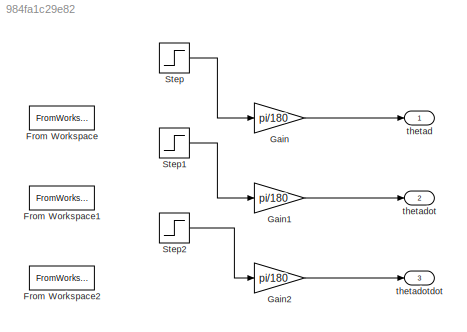
MODEL slx_984fa1c29e82
KIND model
CONFIG AbsTol = auto
CONFIG EnableMultiTasking = off
CONFIG FixedStep = auto
CONFIG MaxStep = auto
CONFIG MinStep = auto
CONFIG RelTol = 1e-3
CONFIG SampleTimeConstraint = Unconstrained
CONFIG SolverName = VariableStepAuto
CONFIG StartTime = 0.0
CONFIG StopTime = 10.0
BLOCK [FromWorkspace] From Workspace
  Commented = on
  OutDataTypeStr = half
  VariableName = thetad
BLOCK [FromWorkspace] From Workspace1
  Commented = on
  VariableName = thetadot
BLOCK [FromWorkspace] From Workspace2
  Commented = on
  VariableName = thetadotdot
BLOCK [Gain] Gain
  Gain = pi/180
BLOCK [Gain] Gain1
  Gain = pi/180
BLOCK [Gain] Gain2
  Gain = pi/180
BLOCK [Step] Step
  After = [60; -50; 20]
  Before = [60; -110; 20]
  SampleTime = 0
  Time = 5
BLOCK [Step] Step1
  After = [0; 0; 0]
  Before = [0; 0; 0]
  SampleTime = 0
  Time = 20
BLOCK [Step] Step2
  After = [0; 0; 0]
  Before = [0; 0; 0]
  SampleTime = 0
  Time = 20
BLOCK [Outport] thetad
BLOCK [Outport] thetadot
  Port = 2
BLOCK [Outport] thetadotdot
  Port = 3
LINE Gain1:1 -> thetadot:1
LINE Gain2:1 -> thetadotdot:1
LINE Gain:1 -> thetad:1
LINE Step1:1 -> Gain1:1
LINE Step2:1 -> Gain2:1
LINE Step:1 -> Gain:1
